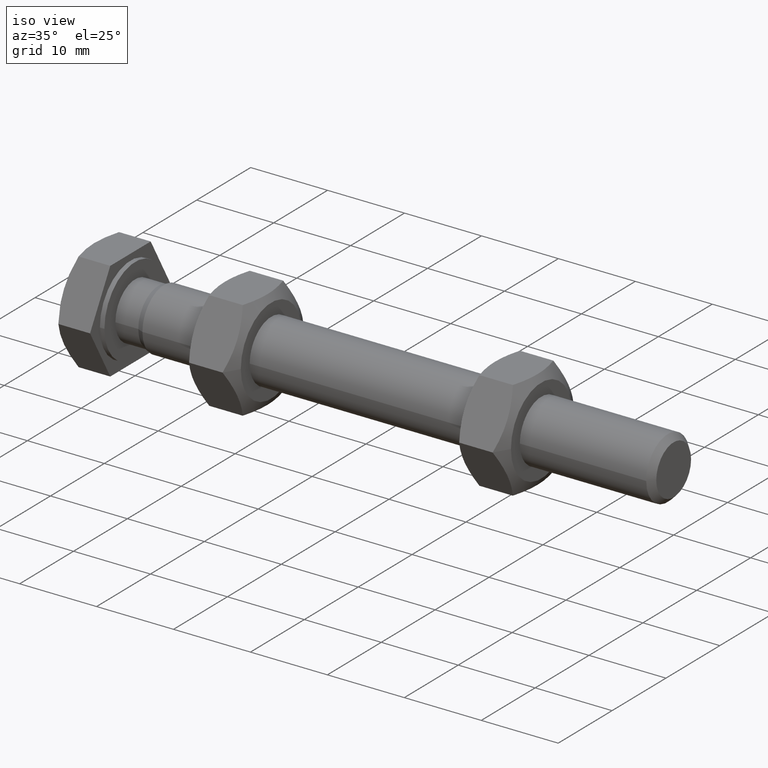
[diagram: clean part render]
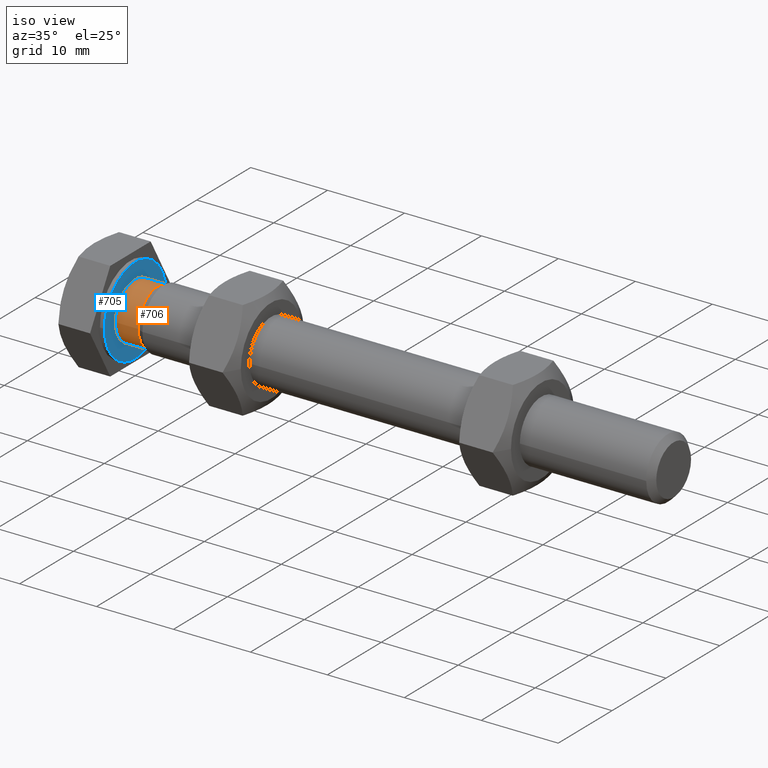
[diagram: same view with the hole feature highlighted: cylindrical wall and planar end face, labeled with their STEP entity ids]
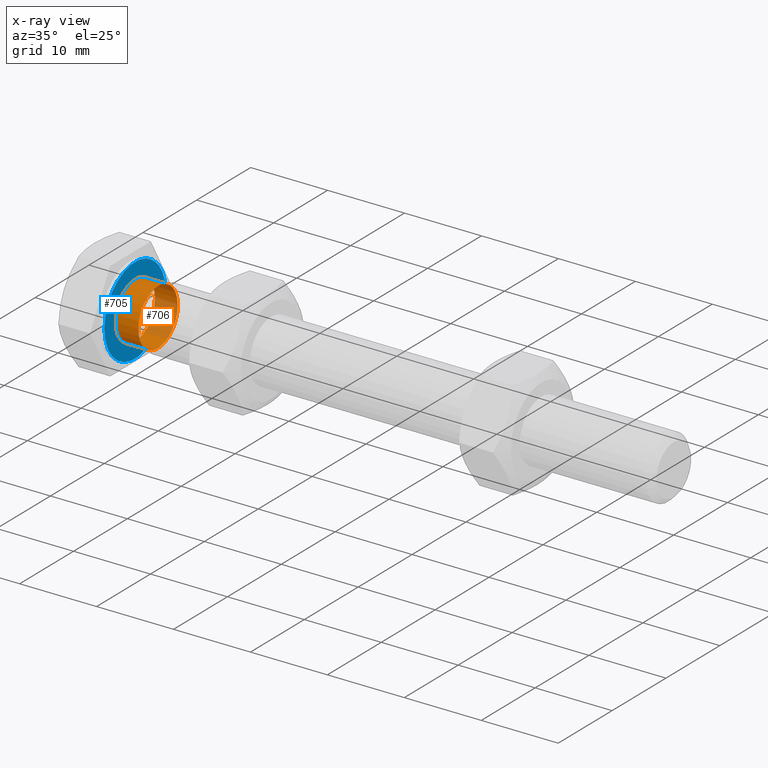
[diagram: x-ray of the same camera — body ghosted, the hole faces saturated]
A machine part, iso view. The highlighted faces form one hole feature of diameter 7.3234 mm: the cylindrical wall (entity #706, orange) and its adjacent planar end face (entity #705, blue) — they share a circular edge in the B-rep.
The next image is the same camera in x-ray (body ghosted, the hole faces saturated) — the bore reads through the body.
Wall:
#89=CYLINDRICAL_SURFACE('',#791,3.66170875);
#111=FACE_OUTER_BOUND('',#160,.T.);
#160=EDGE_LOOP('',(#543,#544,#545,#546));
#207=LINE('',#1137,#246);
#246=VECTOR('',#919,3.66170875);
#282=CIRCLE('',#790,3.66170875);
#283=CIRCLE('',#792,3.66170875);
#322=VERTEX_POINT('',#1132);
#323=VERTEX_POINT('',#1135);
#401=EDGE_CURVE('',#322,#322,#282,.T.);
#402=EDGE_CURVE('',#323,#323,#283,.T.);
#403=EDGE_CURVE('',#323,#322,#207,.T.);
#543=ORIENTED_EDGE('',*,*,#402,.F.);
#544=ORIENTED_EDGE('',*,*,#403,.T.);
#545=ORIENTED_EDGE('',*,*,#401,.T.);
#546=ORIENTED_EDGE('',*,*,#403,.F.);
#706=ADVANCED_FACE('',(#111),#89,.T.);
#790=AXIS2_PLACEMENT_3D('',#1133,#913,#914);
#791=AXIS2_PLACEMENT_3D('',#1134,#915,#916);
#792=AXIS2_PLACEMENT_3D('',#1136,#917,#918);
#913=DIRECTION('center_axis',(1.,1.25804130546575E-16,0.));
#914=DIRECTION('ref_axis',(-1.25804130546575E-16,1.,0.));
#915=DIRECTION('center_axis',(1.,1.25804130546575E-16,0.));
#916=DIRECTION('ref_axis',(-1.25804130546575E-16,1.,0.));
#917=DIRECTION('center_axis',(1.,1.25804130546575E-16,0.));
#918=DIRECTION('ref_axis',(-1.25804130546575E-16,1.,0.));
#919=DIRECTION('',(-1.,-1.25804130546575E-16,0.));
#1132=CARTESIAN_POINT('',(9.43689570931383E-15,-3.66170875,-4.48429990009736E-16));
#1133=CARTESIAN_POINT('Origin',(8.88178419700125E-15,-2.14495099050931E-15,
0.));
#1134=CARTESIAN_POINT('Origin',(1.49154375000001,-1.95730862586838E-15,
0.));
#1135=CARTESIAN_POINT('',(2.98308750000001,-3.66170875,-4.48429990009736E-16));
#1136=CARTESIAN_POINT('Origin',(2.98308750000001,-1.76966626122746E-15,
0.));
#1137=CARTESIAN_POINT('',(1.49154375000001,-3.66170875,-4.48429990009736E-16));
End face:
#20=FACE_BOUND('',#159,.T.);
#70=PLANE('',#789);
#110=FACE_OUTER_BOUND('',#158,.T.);
#158=EDGE_LOOP('',(#541));
#159=EDGE_LOOP('',(#542));
#281=CIRCLE('',#788,5.7);
#282=CIRCLE('',#790,3.66170875);
#321=VERTEX_POINT('',#1128);
#322=VERTEX_POINT('',#1132);
#399=EDGE_CURVE('',#321,#321,#281,.T.);
#401=EDGE_CURVE('',#322,#322,#282,.T.);
#541=ORIENTED_EDGE('',*,*,#399,.T.);
#542=ORIENTED_EDGE('',*,*,#401,.F.);
#705=ADVANCED_FACE('',(#110,#20),#70,.T.);
#788=AXIS2_PLACEMENT_3D('',#1129,#908,#909);
#789=AXIS2_PLACEMENT_3D('',#1131,#911,#912);
#790=AXIS2_PLACEMENT_3D('',#1133,#913,#914);
#908=DIRECTION('center_axis',(1.,1.25804130546575E-16,0.));
#909=DIRECTION('ref_axis',(-1.25804130546575E-16,1.,0.));
#911=DIRECTION('center_axis',(1.,1.25804130546575E-16,0.));
#912=DIRECTION('ref_axis',(0.,0.,-1.));
#913=DIRECTION('center_axis',(1.,1.25804130546575E-16,0.));
#914=DIRECTION('ref_axis',(-1.25804130546575E-16,1.,0.));
#1128=CARTESIAN_POINT('',(9.64506252643105E-15,-5.7,-6.98048675513991E-16));
#1129=CARTESIAN_POINT('Origin',(8.88178419700125E-15,-2.14495099050931E-15,
0.));
#1131=CARTESIAN_POINT('Origin',(5.62050406216485E-15,4.680854375,0.));
#1132=CARTESIAN_POINT('',(9.43689570931383E-15,-3.66170875,-4.48429990009736E-16));
#1133=CARTESIAN_POINT('Origin',(8.88178419700125E-15,-2.14495099050931E-15,
0.));